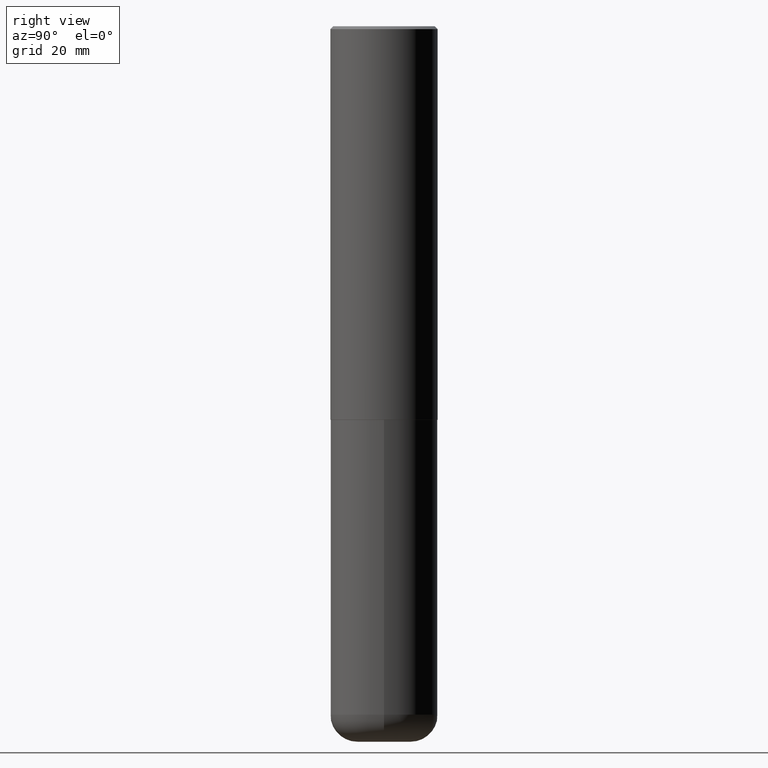
[diagram: clean part render]
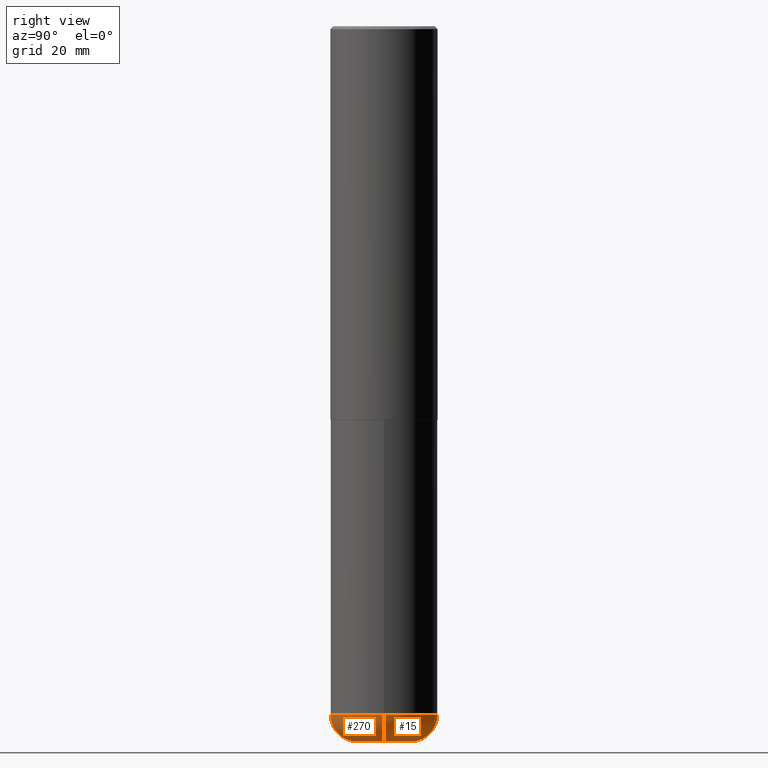
[diagram: same view with one multi-face feature highlighted, each face labeled with its STEP entity id]
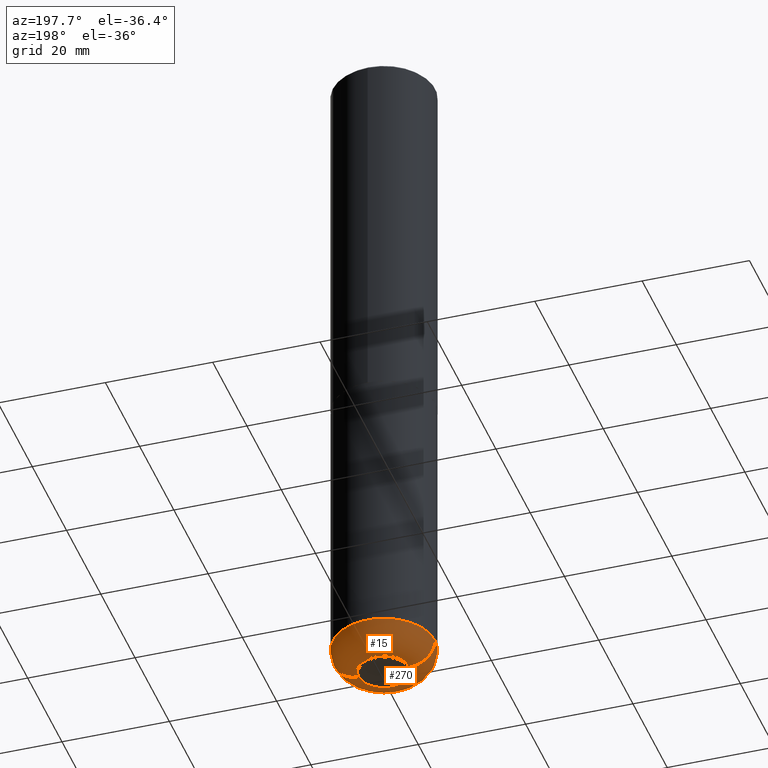
[diagram: same view with one multi-face feature highlighted, each face labeled with its STEP entity id]
A machine part, right view. The highlighted faces form ONE feature: a constant-radius fillet chain: 2 tangent blend faces with common blend radius 4.826 mm. The faces share edges in the B-rep.
A second angle (auxiliary view) of the same feature is appended — it is thin or edge-on in the first view.
Their STEP definitions:
[1] entity #270 (Torus):
#9 = DIRECTION ( 'NONE',  ( 7.105427357601001859E-15, 1.000000000000000000, -3.491481338843145583E-15 ) ) ;
#20 = DIRECTION ( 'NONE',  ( -2.445468806185136597E-29, 3.491481338843145583E-15, 1.000000000000000000 ) ) ;
#48 = CARTESIAN_POINT ( 'NONE',  ( 1.176270495775050811E-28, -1.679402523983553013E-14, -4.810000000000000497 ) ) ;
#54 = CARTESIAN_POINT ( 'NONE',  ( -0.3750000000000000555, -1.412948998073515443E-14, -4.810000000000000497 ) ) ;
#55 = ORIENTED_EDGE ( 'NONE', *, *, #358, .F. ) ;
#58 = CARTESIAN_POINT ( 'NONE',  ( 1.176270495775050811E-28, -1.679402523983553013E-14, -4.810000000000000497 ) ) ;
#64 = CARTESIAN_POINT ( 'NONE',  ( -0.1850000000000000533, -1.547952117867934441E-14, -4.810000000000000497 ) ) ;
#77 = EDGE_LOOP ( 'NONE', ( #227, #257, #349, #55 ) ) ;
#81 = CARTESIAN_POINT ( 'NONE',  ( 0.3750000000000000555, -1.941263624396788015E-14, -4.810000000000000497 ) ) ;
#96 = AXIS2_PLACEMENT_3D ( 'NONE', #48, #20, #408 ) ;
#100 = EDGE_CURVE ( 'NONE', #293, #254, #129, .T. ) ;
#117 = EDGE_CURVE ( 'NONE', #293, #351, #235, .T. ) ;
#118 = DIRECTION ( 'NONE',  ( -6.982962677686266711E-15, -1.000000000000000000, 3.491481338843145583E-15 ) ) ;
#121 = TOROIDAL_SURFACE ( 'NONE', #96, 0.1850000000000000533, 0.1899999999999999467 ) ;
#122 = DIRECTION ( 'NONE',  ( -2.445468806185136597E-29, 3.491481338843145583E-15, 1.000000000000000000 ) ) ;
#127 = DIRECTION ( 'NONE',  ( 1.000000000000000000, -6.982962677686265922E-15, 0.000000000000000000 ) ) ;
#129 = CIRCLE ( 'NONE', #190, 0.1850000000000000810 ) ;
#149 = FACE_OUTER_BOUND ( 'NONE', #77, .T. ) ;
#190 = AXIS2_PLACEMENT_3D ( 'NONE', #299, #269, #398 ) ;
#191 = AXIS2_PLACEMENT_3D ( 'NONE', #407, #118, #311 ) ;
#207 = DIRECTION ( 'NONE',  ( -1.000000000000000000, 7.105427357601001070E-15, 0.000000000000000000 ) ) ;
#227 = ORIENTED_EDGE ( 'NONE', *, *, #117, .F. ) ;
#228 = VERTEX_POINT ( 'NONE', #81 ) ;
#229 = AXIS2_PLACEMENT_3D ( 'NONE', #58, #122, #127 ) ;
#235 = CIRCLE ( 'NONE', #250, 0.1899999999999999190 ) ;
#240 = EDGE_CURVE ( 'NONE', #254, #228, #304, .T. ) ;
#250 = AXIS2_PLACEMENT_3D ( 'NONE', #64, #9, #207 ) ;
#254 = VERTEX_POINT ( 'NONE', #400 ) ;
#257 = ORIENTED_EDGE ( 'NONE', *, *, #100, .T. ) ;
#269 = DIRECTION ( 'NONE',  ( -2.445468806185136597E-29, 3.491481338843145583E-15, 1.000000000000000000 ) ) ;
#270 = ADVANCED_FACE ( 'NONE', ( #149 ), #121, .T. ) ;
#285 = CIRCLE ( 'NONE', #229, 0.3750000000000001110 ) ;
#293 = VERTEX_POINT ( 'NONE', #307 ) ;
#299 = CARTESIAN_POINT ( 'NONE',  ( 1.222734403092568523E-28, -1.745740669421572989E-14, -5.000000000000000000 ) ) ;
#304 = CIRCLE ( 'NONE', #191, 0.1899999999999999190 ) ;
#307 = CARTESIAN_POINT ( 'NONE',  ( -0.1850000000000000810, -1.513619630689734772E-14, -5.000000000000000000 ) ) ;
#311 = DIRECTION ( 'NONE',  ( 1.000000000000000000, -6.982962677686264344E-15, 0.000000000000000000 ) ) ;
#349 = ORIENTED_EDGE ( 'NONE', *, *, #240, .T. ) ;
#351 = VERTEX_POINT ( 'NONE', #54 ) ;
#358 = EDGE_CURVE ( 'NONE', #351, #228, #285, .T. ) ;
#398 = DIRECTION ( 'NONE',  ( 1.000000000000000000, -6.982962677686272233E-15, 0.000000000000000000 ) ) ;
#400 = CARTESIAN_POINT ( 'NONE',  ( 0.1850000000000000810, -1.874925478958768986E-14, -5.000000000000000000 ) ) ;
#407 = CARTESIAN_POINT ( 'NONE',  ( 0.1850000000000000533, -1.808587333520749010E-14, -4.810000000000000497 ) ) ;
#408 = DIRECTION ( 'NONE',  ( 1.000000000000000000, -6.982962677686269077E-15, 4.883557194083113462E-29 ) ) ;
[2] entity #15 (Torus):
#4 = CIRCLE ( 'NONE', #342, 0.1850000000000000810 ) ;
#9 = DIRECTION ( 'NONE',  ( 7.105427357601001859E-15, 1.000000000000000000, -3.491481338843145583E-15 ) ) ;
#15 = ADVANCED_FACE ( 'NONE', ( #102 ), #328, .T. ) ;
#27 = ORIENTED_EDGE ( 'NONE', *, *, #325, .F. ) ;
#35 = CARTESIAN_POINT ( 'NONE',  ( 1.222734403092568523E-28, -1.745740669421572989E-14, -5.000000000000000000 ) ) ;
#54 = CARTESIAN_POINT ( 'NONE',  ( -0.3750000000000000555, -1.412948998073515443E-14, -4.810000000000000497 ) ) ;
#60 = ORIENTED_EDGE ( 'NONE', *, *, #240, .F. ) ;
#64 = CARTESIAN_POINT ( 'NONE',  ( -0.1850000000000000533, -1.547952117867934441E-14, -4.810000000000000497 ) ) ;
#81 = CARTESIAN_POINT ( 'NONE',  ( 0.3750000000000000555, -1.941263624396788015E-14, -4.810000000000000497 ) ) ;
#102 = FACE_OUTER_BOUND ( 'NONE', #346, .T. ) ;
#113 = DIRECTION ( 'NONE',  ( -2.445468806185136597E-29, 3.491481338843145583E-15, 1.000000000000000000 ) ) ;
#117 = EDGE_CURVE ( 'NONE', #293, #351, #235, .T. ) ;
#118 = DIRECTION ( 'NONE',  ( -6.982962677686266711E-15, -1.000000000000000000, 3.491481338843145583E-15 ) ) ;
#134 = CIRCLE ( 'NONE', #355, 0.3750000000000001110 ) ;
#141 = AXIS2_PLACEMENT_3D ( 'NONE', #234, #205, #301 ) ;
#165 = DIRECTION ( 'NONE',  ( -2.445468806185136597E-29, 3.491481338843145583E-15, 1.000000000000000000 ) ) ;
#191 = AXIS2_PLACEMENT_3D ( 'NONE', #407, #118, #311 ) ;
#192 = ORIENTED_EDGE ( 'NONE', *, *, #117, .T. ) ;
#205 = DIRECTION ( 'NONE',  ( -2.445468806185136597E-29, 3.491481338843145583E-15, 1.000000000000000000 ) ) ;
#207 = DIRECTION ( 'NONE',  ( -1.000000000000000000, 7.105427357601001070E-15, 0.000000000000000000 ) ) ;
#211 = DIRECTION ( 'NONE',  ( 1.000000000000000000, -6.982962677686265922E-15, 0.000000000000000000 ) ) ;
#228 = VERTEX_POINT ( 'NONE', #81 ) ;
#234 = CARTESIAN_POINT ( 'NONE',  ( 1.176270495775050811E-28, -1.679402523983553013E-14, -4.810000000000000497 ) ) ;
#235 = CIRCLE ( 'NONE', #250, 0.1899999999999999190 ) ;
#240 = EDGE_CURVE ( 'NONE', #254, #228, #304, .T. ) ;
#250 = AXIS2_PLACEMENT_3D ( 'NONE', #64, #9, #207 ) ;
#254 = VERTEX_POINT ( 'NONE', #400 ) ;
#293 = VERTEX_POINT ( 'NONE', #307 ) ;
#301 = DIRECTION ( 'NONE',  ( 1.000000000000000000, -6.982962677686269077E-15, 4.883557194083113462E-29 ) ) ;
#304 = CIRCLE ( 'NONE', #191, 0.1899999999999999190 ) ;
#307 = CARTESIAN_POINT ( 'NONE',  ( -0.1850000000000000810, -1.513619630689734772E-14, -5.000000000000000000 ) ) ;
#311 = DIRECTION ( 'NONE',  ( 1.000000000000000000, -6.982962677686264344E-15, 0.000000000000000000 ) ) ;
#325 = EDGE_CURVE ( 'NONE', #228, #351, #134, .T. ) ;
#326 = DIRECTION ( 'NONE',  ( 1.000000000000000000, -6.982962677686272233E-15, 0.000000000000000000 ) ) ;
#328 = TOROIDAL_SURFACE ( 'NONE', #141, 0.1850000000000000533, 0.1899999999999999467 ) ;
#342 = AXIS2_PLACEMENT_3D ( 'NONE', #35, #165, #326 ) ;
#346 = EDGE_LOOP ( 'NONE', ( #380, #192, #27, #60 ) ) ;
#351 = VERTEX_POINT ( 'NONE', #54 ) ;
#355 = AXIS2_PLACEMENT_3D ( 'NONE', #402, #113, #211 ) ;
#367 = EDGE_CURVE ( 'NONE', #254, #293, #4, .T. ) ;
#380 = ORIENTED_EDGE ( 'NONE', *, *, #367, .T. ) ;
#400 = CARTESIAN_POINT ( 'NONE',  ( 0.1850000000000000810, -1.874925478958768986E-14, -5.000000000000000000 ) ) ;
#402 = CARTESIAN_POINT ( 'NONE',  ( 1.176270495775050811E-28, -1.679402523983553013E-14, -4.810000000000000497 ) ) ;
#407 = CARTESIAN_POINT ( 'NONE',  ( 0.1850000000000000533, -1.808587333520749010E-14, -4.810000000000000497 ) ) ;